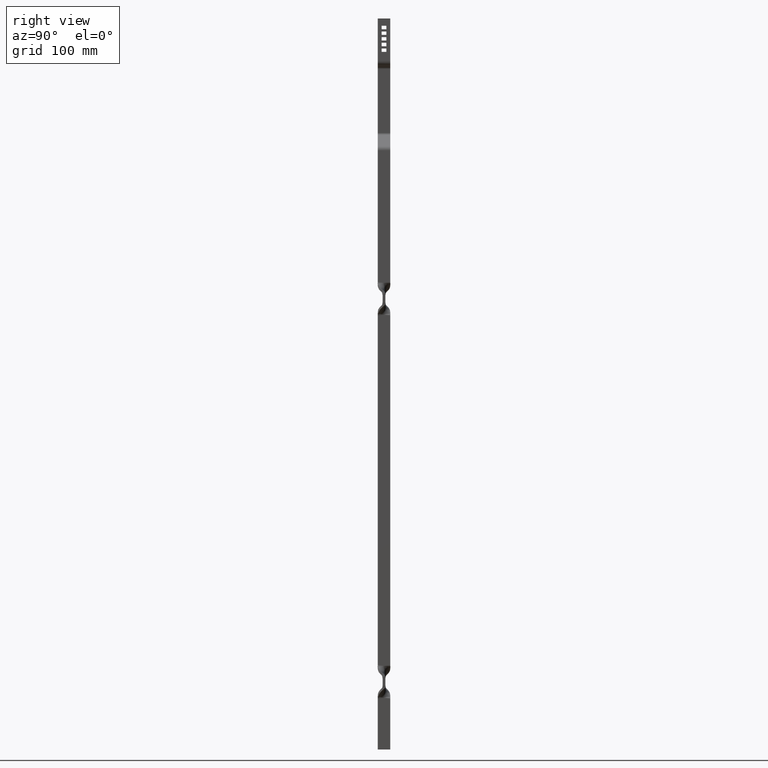
[diagram: clean part render]
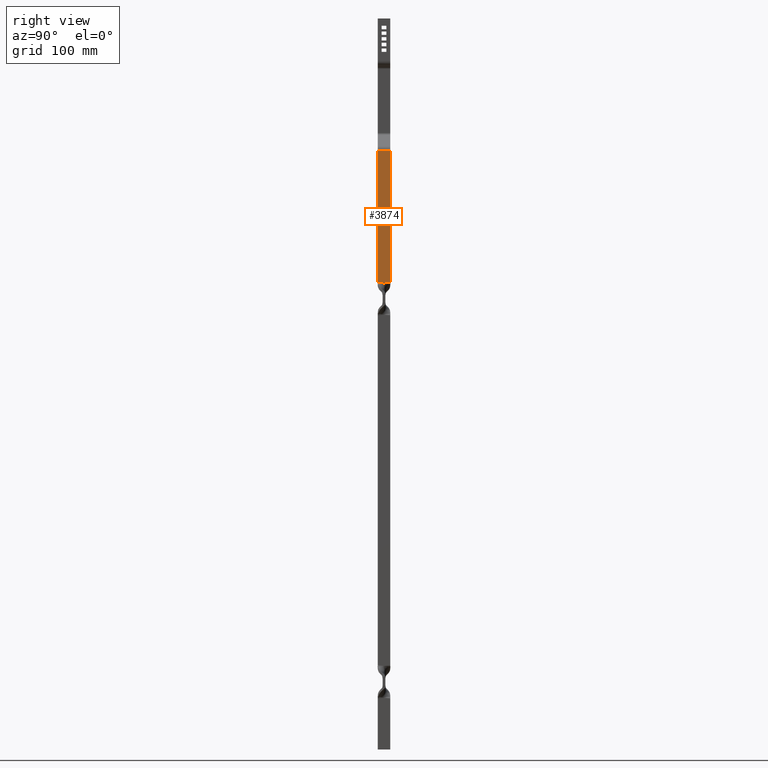
[diagram: same view with one face highlighted and labeled with its STEP entity id]
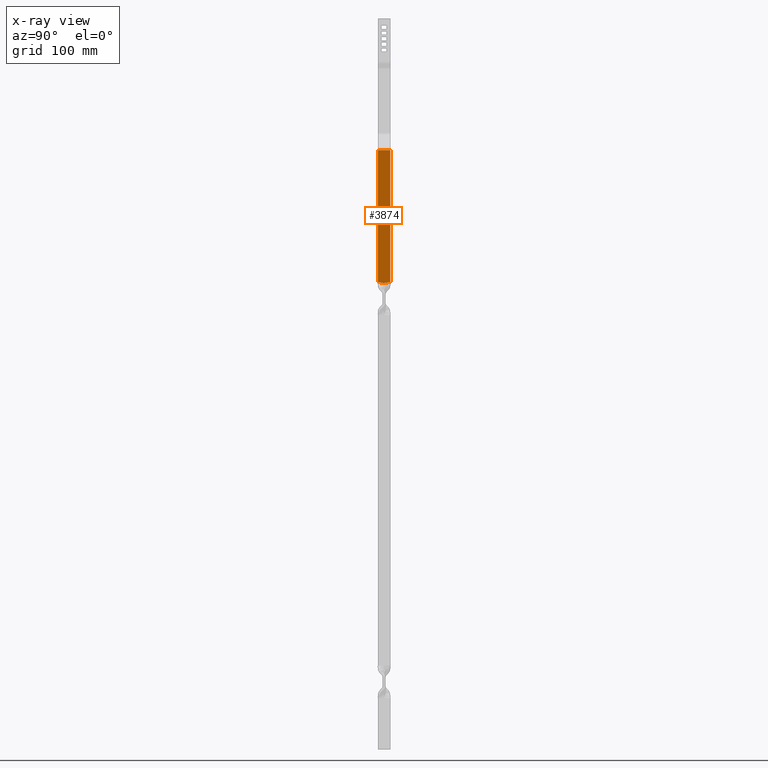
[diagram: x-ray of the same camera — body ghosted, the highlighted face saturated]
A machine part, right view. The second image highlights one B-rep face of the part: STEP entity #3874.
The next image is the same camera in x-ray: the body ghosted, the highlighted face saturated — about 0% of this face is hidden behind the body in this view.
In plain terms, the highlighted face is a freeform B-spline surface patch.
Its self-contained STEP definition (entity closure, byte-faithful):
#919=CARTESIAN_POINT('',(13.499999999125381,-0.271775746138459,-283.499999999965500));
#920=VERTEX_POINT('',#919);
#921=CARTESIAN_POINT('',(13.499999999999581,7.0,-282.289823195471510));
#922=VERTEX_POINT('',#921);
#923=CARTESIAN_POINT('',(13.499999999125381,-0.271775746138459,-283.499999999965500));
#924=CARTESIAN_POINT('',(13.499999999999631,0.331125422041375,-283.381840450838180));
#925=CARTESIAN_POINT('',(13.499999999999590,0.934187228391713,-283.262608892181390));
#926=CARTESIAN_POINT('',(13.499999999999590,2.141573673938193,-283.032512668269700));
#927=CARTESIAN_POINT('',(13.499999999999590,2.746067614053644,-282.921779648572620));
#928=CARTESIAN_POINT('',(13.499999999999590,3.957689163754568,-282.715155313453410));
#929=CARTESIAN_POINT('',(13.499999999999520,4.564574697635087,-282.619239176030480));
#930=CARTESIAN_POINT('',(13.499999999999529,5.780642736340893,-282.443213668893520));
#931=CARTESIAN_POINT('',(13.499999999999581,6.389812878324910,-282.363019223414080));
#932=CARTESIAN_POINT('',(13.499999999999581,7.0,-282.289823195471510));
#933=B_SPLINE_CURVE_WITH_KNOTS('',3,(#923,#924,#925,#926,#927,#928,#929,#930,#931,#932),.UNSPECIFIED.,.F.,.U.,(4,2,2,2,4),(0.0,0.250000000000000,0.500000000000000,0.750000000000000,1.0),.UNSPECIFIED.);
#934=EDGE_CURVE('',#920,#922,#933,.T.);
#1069=CARTESIAN_POINT('',(13.499999999999581,-7.0,-282.313138851884100));
#1070=VERTEX_POINT('',#1069);
#1071=CARTESIAN_POINT('',(13.499999999999581,-7.0,-282.313138851884100));
#1072=CARTESIAN_POINT('',(13.499999999999581,-6.434663200717983,-282.383037043895630));
#1073=CARTESIAN_POINT('',(13.499999999999620,-5.870319582463665,-282.459521504030700));
#1074=CARTESIAN_POINT('',(13.499999999999609,-4.743986133301561,-282.628099536976610));
#1075=CARTESIAN_POINT('',(13.499999999999639,-4.182009287865738,-282.720279222790000));
#1076=CARTESIAN_POINT('',(13.499999999999639,-3.060560236042303,-282.921248078351480));
#1077=CARTESIAN_POINT('',(13.499999999999620,-2.501421362214812,-283.030178084091180));
#1078=CARTESIAN_POINT('',(13.499999999999620,-1.385487364081189,-283.259859970381510));
#1079=CARTESIAN_POINT('',(13.499999999999510,-0.828537850757136,-283.380513751498600));
#1080=CARTESIAN_POINT('',(13.499999999125381,-0.271775746138459,-283.499999999965500));
#1081=B_SPLINE_CURVE_WITH_KNOTS('',3,(#1071,#1072,#1073,#1074,#1075,#1076,#1077,#1078,#1079,#1080),.UNSPECIFIED.,.F.,.U.,(4,2,2,2,4),(0.0,0.250000000000000,0.500000000000000,0.750000000000000,1.0),.UNSPECIFIED.);
#1082=EDGE_CURVE('',#1070,#920,#1081,.T.);
#2055=CARTESIAN_POINT('',(13.500000000000821,-7.0,-136.227922061358210));
#2056=VERTEX_POINT('',#2055);
#2072=CARTESIAN_POINT('',(13.500000000000821,7.0,-136.227922061358210));
#2073=VERTEX_POINT('',#2072);
#2074=CARTESIAN_POINT('',(13.500000000000821,7.0,-136.227922061358210));
#2075=CARTESIAN_POINT('',(13.500000000000821,-7.0,-136.227922061358210));
#2076=QUASI_UNIFORM_CURVE('',1,(#2074,#2075),.UNSPECIFIED.,.F.,.U.);
#2077=EDGE_CURVE('',#2073,#2056,#2076,.T.);
#3675=CARTESIAN_POINT('',(13.499999999999581,7.0,-282.289823195471510));
#3676=CARTESIAN_POINT('',(13.500000000000821,7.0,-136.227922061358210));
#3677=QUASI_UNIFORM_CURVE('',1,(#3675,#3676),.UNSPECIFIED.,.F.,.U.);
#3678=EDGE_CURVE('',#922,#2073,#3677,.T.);
#3761=CARTESIAN_POINT('',(13.499999999999581,-7.0,-282.313138851884100));
#3762=CARTESIAN_POINT('',(13.500000000000821,-7.0,-136.227922061358210));
#3763=QUASI_UNIFORM_CURVE('',1,(#3761,#3762),.UNSPECIFIED.,.F.,.U.);
#3764=EDGE_CURVE('',#1070,#2056,#3763,.T.);
#3862=CARTESIAN_POINT('',(13.499999999999559,-7.699299972865286,-290.856240007557120));
#3863=CARTESIAN_POINT('',(13.499999999999559,-7.699299972865286,-128.871678103621690));
#3864=CARTESIAN_POINT('',(13.499999999999559,7.699300348374547,-290.856240007557120));
#3865=CARTESIAN_POINT('',(13.499999999999559,7.699300348374547,-128.871678103621690));
#3866=B_SPLINE_SURFACE_WITH_KNOTS('',1,1,((#3862,#3864),(#3863,#3865)),.UNSPECIFIED.,.F.,.F.,.U.,(2,2),(2,2),(0.0,161.984561903935400),(0.0,15.398600321239829),.UNSPECIFIED.);
#3867=ORIENTED_EDGE('',*,*,#3764,.F.);
#3868=ORIENTED_EDGE('',*,*,#1082,.T.);
#3869=ORIENTED_EDGE('',*,*,#934,.T.);
#3870=ORIENTED_EDGE('',*,*,#3678,.T.);
#3871=ORIENTED_EDGE('',*,*,#2077,.T.);
#3872=EDGE_LOOP('',(#3867,#3868,#3869,#3870,#3871));
#3873=FACE_OUTER_BOUND('',#3872,.T.);
#3874=ADVANCED_FACE('',(#3873),#3866,.F.);